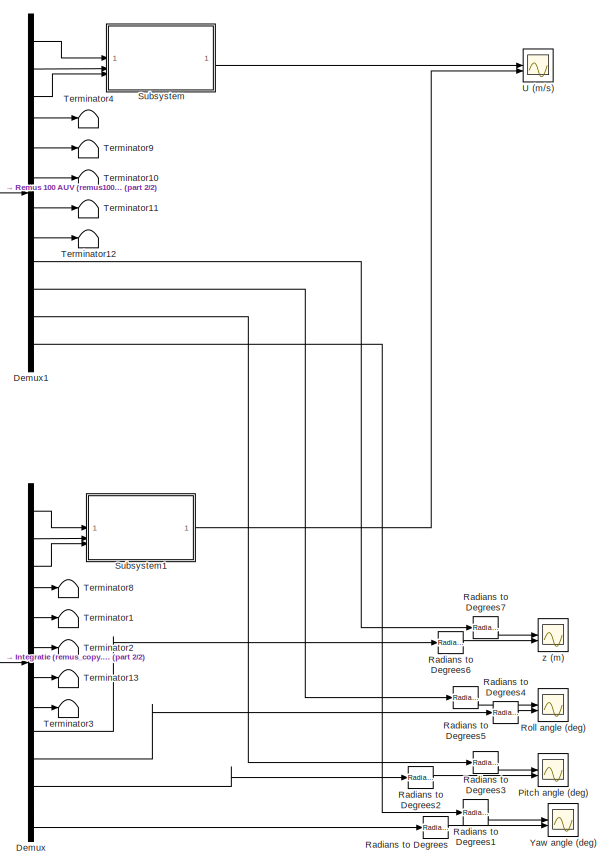
[diagram: root canvas - part 1/2, right side, full height]
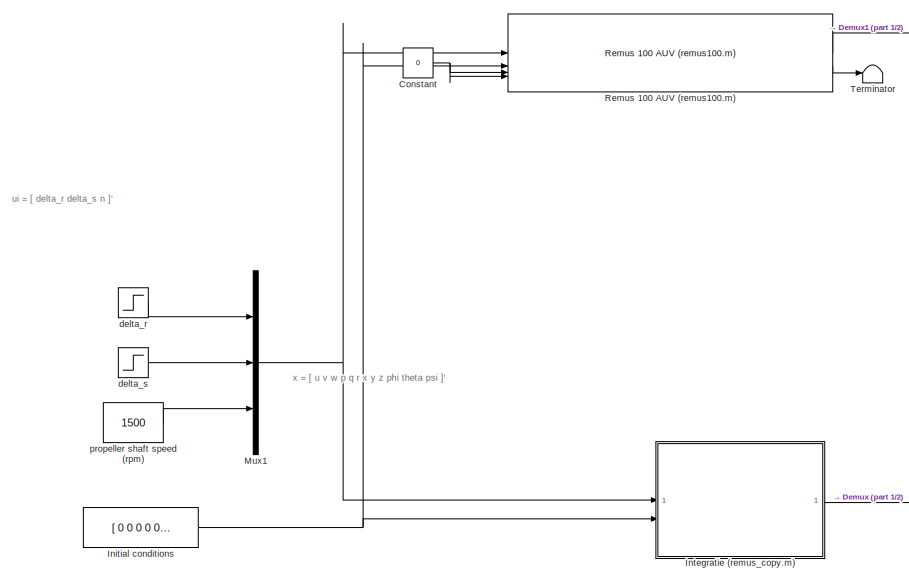
[diagram: root canvas - part 2/2, middle left region]
MODEL slx_cd60fb64f625
KIND model
CONFIG AbsTol = auto
CONFIG EnableMultiTasking = off
CONFIG FixedStep = auto
CONFIG MaxStep = auto
CONFIG MinStep = auto
CONFIG RelTol = 1e-3
CONFIG SampleTimeConstraint = Unconstrained
CONFIG SolverName = VariableStepAuto
CONFIG StartTime = 0.0
CONFIG StopTime = 40
BLOCK [Constant] Constant
  Value = 0
BLOCK [Demux] Demux
  Outputs = 12
BLOCK [Demux] Demux1
  Outputs = 12
BLOCK [Constant] Initial conditions
  Value = [ 0 0 0 0 0 0 0 0  0 0 0 0]
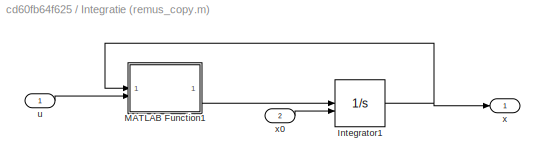
BLOCK [SubSystem] Integratie (remus_copy.m)
BLOCK [Integrator] Integratie (remus_copy.m)/Integrator1
  InitialCondition = [1 1]
  InitialConditionSource = external
  LowerSaturationLimit = -10
  UpperSaturationLimit = 10
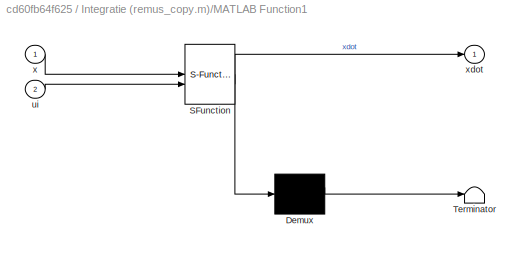
BLOCK [SubSystem] Integratie (remus_copy.m)/MATLAB Function1
  ErrorFcn = Stateflow.Translate.translate
  PermitHierarchicalResolution = ExplicitOnly
  SFBlockType = MATLAB Function
  TreatAsAtomicUnit = on
BLOCK [Demux] Integratie (remus_copy.m)/MATLAB Function1/ Demux 
  Outputs = 1
BLOCK [S-Function] Integratie (remus_copy.m)/MATLAB Function1/ SFunction 
  EnableBusSupport = on
  FunctionName = sf_sfun
  PortCounts = [2 2]
  SFcnIsStateOwnerBlock = off
  SFunctionDeploymentMode = off
  Tag = Stateflow S-Function 2
BLOCK [Terminator] Integratie (remus_copy.m)/MATLAB Function1/ Terminator 
BLOCK [Inport] Integratie (remus_copy.m)/MATLAB Function1/ui
  Port = 2
BLOCK [Inport] Integratie (remus_copy.m)/MATLAB Function1/x
BLOCK [Outport] Integratie (remus_copy.m)/MATLAB Function1/xdot
BLOCK [Inport] Integratie (remus_copy.m)/u
BLOCK [Outport] Integratie (remus_copy.m)/x
BLOCK [Inport] Integratie (remus_copy.m)/x0
  Port = 2
BLOCK [Mux] Mux1
  DisplayOption = bar
  Inputs = 3
BLOCK [Scope] Pitch angle (deg)
  Floating = off
  NumInputPorts = 2
  ScopeSpecificationString = Simulink.scopes.TimeScopeBlockCfg('CurrentConfiguration', extmgr.ConfigurationSet(extmgr.Configuration('Core','General UI',true),extmgr.Configuration('Core','Source UI',true),extmgr.Configuration('Sources','WiredSimulink',true,'DataLoggingVariableName','ScopeData1'),extmgr.Configuration('Visuals','Time Domain',true,'SerializedDisplays',{struct('MinYLimReal','-5.60482','MaxYLimReal','7.27589','YLab...<+1429ch>
BLOCK [Reference] Radians to Degrees  REF=simulink_extras/Transformations/Radians
to Degrees
  SourceBlock = simulink_extras/Transformations/Radians\nto Degrees
  SourceType = RadiansToDegrees
BLOCK [Reference] Radians to Degrees1  REF=simulink_extras/Transformations/Radians
to Degrees
  SourceBlock = simulink_extras/Transformations/Radians\nto Degrees
  SourceType = RadiansToDegrees
BLOCK [Reference] Radians to Degrees2  REF=simulink_extras/Transformations/Radians
to Degrees
  SourceBlock = simulink_extras/Transformations/Radians\nto Degrees
  SourceType = RadiansToDegrees
BLOCK [Reference] Radians to Degrees3  REF=simulink_extras/Transformations/Radians
to Degrees
  SourceBlock = simulink_extras/Transformations/Radians\nto Degrees
  SourceType = RadiansToDegrees
BLOCK [Reference] Radians to Degrees4  REF=simulink_extras/Transformations/Radians
to Degrees
  SourceBlock = simulink_extras/Transformations/Radians\nto Degrees
  SourceType = RadiansToDegrees
BLOCK [Reference] Radians to Degrees5  REF=simulink_extras/Transformations/Radians
to Degrees
  SourceBlock = simulink_extras/Transformations/Radians\nto Degrees
  SourceType = RadiansToDegrees
BLOCK [Reference] Radians to Degrees6  REF=simulink_extras/Transformations/Radians
to Degrees
  SourceBlock = simulink_extras/Transformations/Radians\nto Degrees
  SourceType = RadiansToDegrees
BLOCK [Reference] Radians to Degrees7  REF=simulink_extras/Transformations/Radians
to Degrees
  SourceBlock = simulink_extras/Transformations/Radians\nto Degrees
  SourceType = RadiansToDegrees
BLOCK [Reference] Remus 100 AUV (remus100.m)   REF=mssSimulink/Marine craft models/Remus 100 AUV (remus100.m)
  SourceBlock = mssSimulink/Marine craft models/Remus 100 AUV (remus100.m)
BLOCK [Scope] Roll angle (deg)
  Floating = off
  NumInputPorts = 2
  ScopeSpecificationString = Simulink.scopes.TimeScopeBlockCfg('CurrentConfiguration', extmgr.ConfigurationSet(extmgr.Configuration('Core','General UI',true),extmgr.Configuration('Core','Source UI',true),extmgr.Configuration('Sources','WiredSimulink',true,'DataLoggingVariableName','ScopeData2'),extmgr.Configuration('Visuals','Time Domain',true,'SerializedDisplays',{struct('MinYLimReal','-0.32381','MaxYLimReal','2.91433','YLab...<+1432ch>
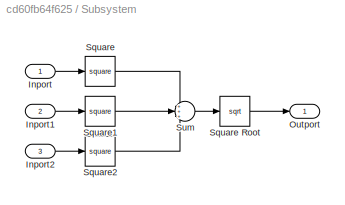
BLOCK [SubSystem] Subsystem
BLOCK [Inport] Subsystem/Inport
BLOCK [Inport] Subsystem/Inport1
  Port = 2
BLOCK [Inport] Subsystem/Inport2
  Port = 3
BLOCK [Outport] Subsystem/Outport
BLOCK [Math] Subsystem/Square
  Operator = square
BLOCK [Sqrt] Subsystem/Square Root
BLOCK [Math] Subsystem/Square1
  Operator = square
BLOCK [Math] Subsystem/Square2
  Operator = square
BLOCK [Sum] Subsystem/Sum
  Inputs = +++
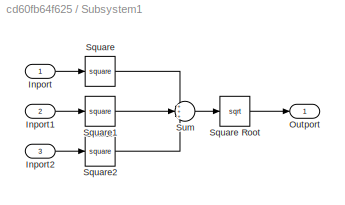
BLOCK [SubSystem] Subsystem1
BLOCK [Inport] Subsystem1/Inport
BLOCK [Inport] Subsystem1/Inport1
  Port = 2
BLOCK [Inport] Subsystem1/Inport2
  Port = 3
BLOCK [Outport] Subsystem1/Outport
BLOCK [Math] Subsystem1/Square
  Operator = square
BLOCK [Sqrt] Subsystem1/Square Root
BLOCK [Math] Subsystem1/Square1
  Operator = square
BLOCK [Math] Subsystem1/Square2
  Operator = square
BLOCK [Sum] Subsystem1/Sum
  Inputs = +++
BLOCK [Terminator] Terminator
BLOCK [Terminator] Terminator1
BLOCK [Terminator] Terminator10
BLOCK [Terminator] Terminator11
BLOCK [Terminator] Terminator12
BLOCK [Terminator] Terminator13
BLOCK [Terminator] Terminator2
BLOCK [Terminator] Terminator3
BLOCK [Terminator] Terminator4
BLOCK [Terminator] Terminator8
BLOCK [Terminator] Terminator9
BLOCK [Scope] U (m//s)
  Floating = off
  NumInputPorts = 2
  ScopeSpecificationString = Simulink.scopes.TimeScopeBlockCfg('CurrentConfiguration', extmgr.ConfigurationSet(extmgr.Configuration('Core','General UI',true),extmgr.Configuration('Core','Source UI',true),extmgr.Configuration('Sources','WiredSimulink',true,'DataLoggingVariableName','ScopeData4'),extmgr.Configuration('Visuals','Time Domain',true,'SerializedDisplays',{struct('MinYLimReal','-0.31397','MaxYLimReal','2.82577','YLab...<+1408ch>
BLOCK [Scope] Yaw angle (deg)
  Floating = off
  NumInputPorts = 2
  ScopeSpecificationString = Simulink.scopes.TimeScopeBlockCfg('CurrentConfiguration', extmgr.ConfigurationSet(extmgr.Configuration('Core','General UI',true),extmgr.Configuration('Core','Source UI',true),extmgr.Configuration('Sources','WiredSimulink',true),extmgr.Configuration('Visuals','Time Domain',true,'SerializedDisplays',{struct('MinYLimReal','-3.87055','MaxYLimReal','33.80028','YLabelReal','','MinYLimMag','0.00000','Max...<+1394ch>
BLOCK [Step] delta_r
  After = 1.5*pi/180
  SampleTime = 0.05
  Time = 20
BLOCK [Step] delta_s
  After = 1.5*pi/180
  SampleTime = 0
  Time = 10
BLOCK [Constant] propeller shaft speed (rpm)
  Value = 1500
BLOCK [Scope] z (m)
  Floating = off
  NumInputPorts = 2
  ScopeSpecificationString = Simulink.scopes.TimeScopeBlockCfg('CurrentConfiguration', extmgr.ConfigurationSet(extmgr.Configuration('Core','General UI',true),extmgr.Configuration('Core','Source UI',true),extmgr.Configuration('Sources','WiredSimulink',true,'DataLoggingVariableName','ScopeData3'),extmgr.Configuration('Visuals','Time Domain',true,'SerializedDisplays',{struct('MinYLimReal','-468.38971','MaxYLimReal','95.59244','Y...<+1480ch>
ANNOTATION (root): ui = [ delta_r delta_s n ]'
ANNOTATION (root): x = [ u v w p q r x y z phi theta psi ]'
NET Constant:1 -> Remus 100 AUV (remus100.m) :3, Remus 100 AUV (remus100.m) :4
LINE Demux1:1 -> Subsystem:1
LINE Demux1:10 -> Radians to Degrees5:1
LINE Demux1:11 -> Radians to Degrees3:1
LINE Demux1:12 -> Radians to Degrees1:1
LINE Demux1:2 -> Subsystem:2
LINE Demux1:3 -> Subsystem:3
LINE Demux1:4 -> Terminator4:1
LINE Demux1:5 -> Terminator9:1
LINE Demux1:6 -> Terminator10:1
LINE Demux1:7 -> Terminator11:1
LINE Demux1:8 -> Terminator12:1
LINE Demux1:9 -> Radians to Degrees7:1
LINE Demux:1 -> Subsystem1:1
LINE Demux:10 -> Radians to Degrees4:1
LINE Demux:11 -> Radians to Degrees2:1
LINE Demux:12 -> Radians to Degrees:1
LINE Demux:2 -> Subsystem1:2
LINE Demux:3 -> Subsystem1:3
LINE Demux:4 -> Terminator8:1
LINE Demux:5 -> Terminator1:1
LINE Demux:6 -> Terminator2:1
LINE Demux:7 -> Terminator13:1
LINE Demux:8 -> Terminator3:1
LINE Demux:9 -> Radians to Degrees6:1
NET Initial conditions:1 -> Integratie (remus_copy.m):2, Remus 100 AUV (remus100.m) :2
NET Integratie (remus_copy.m)/Integrator1:1 -> Integratie (remus_copy.m)/MATLAB Function1:1, Integratie (remus_copy.m)/x:1
LINE Integratie (remus_copy.m)/MATLAB Function1:1 -> Integratie (remus_copy.m)/Integrator1:1
LINE Integratie (remus_copy.m)/u:1 -> Integratie (remus_copy.m)/MATLAB Function1:2
LINE Integratie (remus_copy.m)/x0:1 -> Integratie (remus_copy.m)/Integrator1:2
LINE Integratie (remus_copy.m):1 -> Demux:1
NET Mux1:1 -> Integratie (remus_copy.m):1, Remus 100 AUV (remus100.m) :1
LINE Radians to Degrees1:1 -> Yaw angle (deg):1
LINE Radians to Degrees2:1 -> Pitch angle (deg):2
LINE Radians to Degrees3:1 -> Pitch angle (deg):1
LINE Radians to Degrees4:1 -> Roll angle (deg):2
LINE Radians to Degrees5:1 -> Roll angle (deg):1
LINE Radians to Degrees6:1 -> z (m):2
LINE Radians to Degrees7:1 -> z (m):1
LINE Radians to Degrees:1 -> Yaw angle (deg):2
LINE Remus 100 AUV (remus100.m) :1 -> Demux1:1
LINE Remus 100 AUV (remus100.m) :2 -> Terminator:1
LINE Subsystem/Inport1:1 -> Subsystem/Square1:1
LINE Subsystem/Inport2:1 -> Subsystem/Square2:1
LINE Subsystem/Inport:1 -> Subsystem/Square:1
LINE Subsystem/Square Root:1 -> Subsystem/Outport:1
LINE Subsystem/Square1:1 -> Subsystem/Sum:2
LINE Subsystem/Square2:1 -> Subsystem/Sum:3
LINE Subsystem/Square:1 -> Subsystem/Sum:1
LINE Subsystem/Sum:1 -> Subsystem/Square Root:1
LINE Subsystem1/Inport1:1 -> Subsystem1/Square1:1
LINE Subsystem1/Inport2:1 -> Subsystem1/Square2:1
LINE Subsystem1/Inport:1 -> Subsystem1/Square:1
LINE Subsystem1/Square Root:1 -> Subsystem1/Outport:1
LINE Subsystem1/Square1:1 -> Subsystem1/Sum:2
LINE Subsystem1/Square2:1 -> Subsystem1/Sum:3
LINE Subsystem1/Square:1 -> Subsystem1/Sum:1
LINE Subsystem1/Sum:1 -> Subsystem1/Square Root:1
LINE Subsystem1:1 -> U (m//s):2
LINE Subsystem:1 -> U (m//s):1
LINE delta_r:1 -> Mux1:1
LINE delta_s:1 -> Mux1:2
LINE propeller shaft speed (rpm):1 -> Mux1:3
note: NET lines group one-source signal fan-out (src -> all destinations, sorted); 1:1 wires keep LINE
CHART Integratie (remus_copy.m)/MATLAB Function1 states=1 transitions=1
  STATE_LABEL 'eML_blk_kernel()'
  STATE_LABEL 'SCRIPT:\nfunction xdot = fcn(x,ui)\n\nxdot = remus100_copy(x,ui);\n\nend'
CHART  states=0 transitions=0
